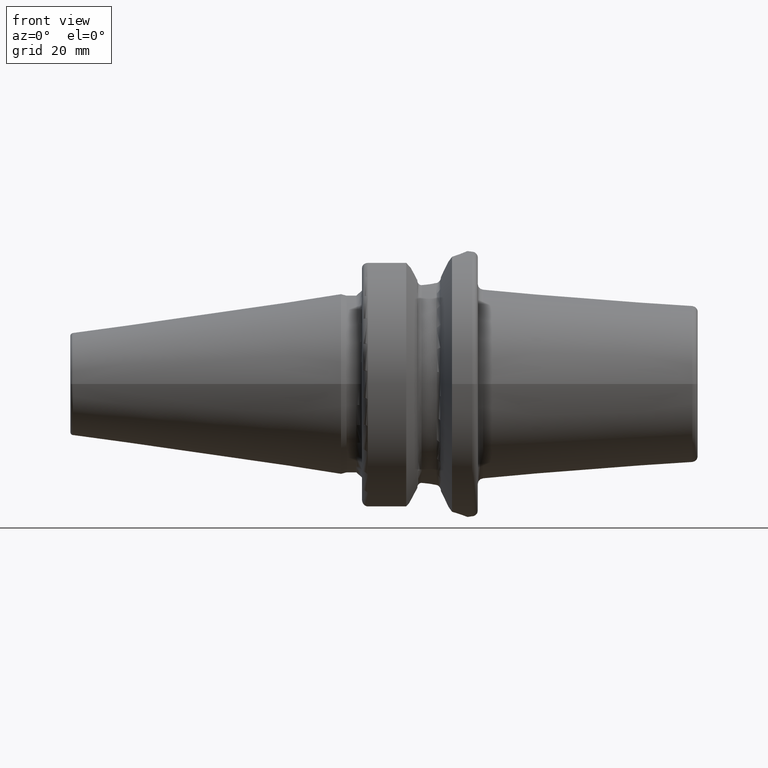
[diagram: clean part render]
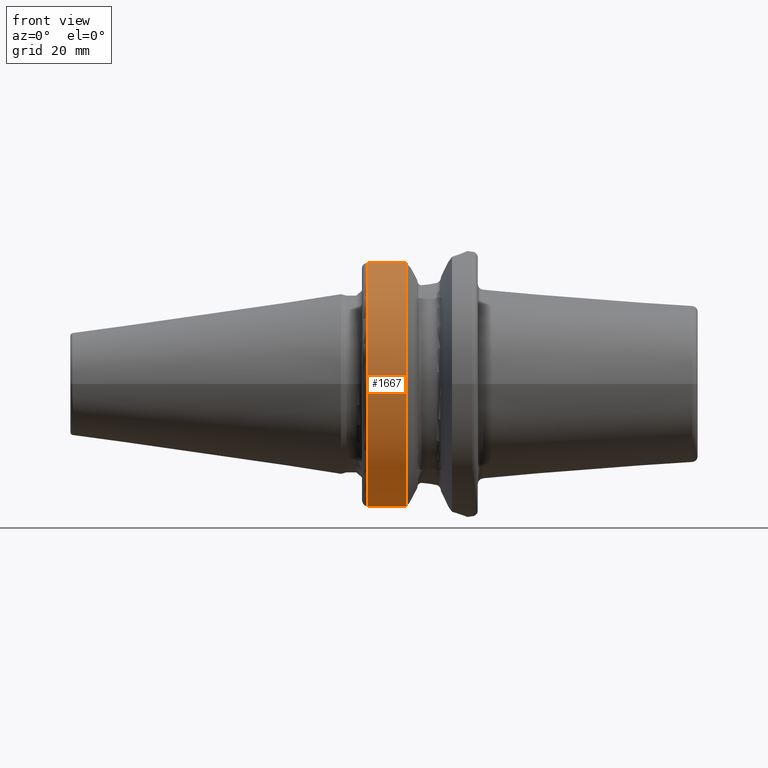
[diagram: same view with one face highlighted and labeled with its STEP entity id]
A machine part, front view. The second image highlights one B-rep face of the part: STEP entity #1667.
In plain terms, the highlighted cylindrical surface (partial cylindrical patch) has radius 22.99 mm, axis along (1, 0, 0).
Its self-contained STEP definition (entity closure, byte-faithful):
#190=CARTESIAN_POINT('',(9.650924158743E0,0.E0,0.E0));
#191=DIRECTION('',(1.E0,0.E0,0.E0));
#192=DIRECTION('',(0.E0,-4.135970895862E-1,9.104600197075E-1));
#193=AXIS2_PLACEMENT_3D('',#190,#191,#192);
#195=DIRECTION('',(9.999999999953E-1,1.691137854943E-6,-2.559578267209E-6));
#196=VECTOR('',#195,6.650924186073E0);
#197=CARTESIAN_POINT('',(2.999999972701E0,-9.014923952472E0,-2.114877606078E1));
#198=LINE('',#197,#196);
#199=CARTESIAN_POINT('',(3.E0,0.E0,0.E0));
#200=DIRECTION('',(-1.E0,0.E0,0.E0));
#201=DIRECTION('',(0.E0,-3.921232146517E-1,-9.199127048428E-1));
#202=AXIS2_PLACEMENT_3D('',#199,#200,#201);
#204=DIRECTION('',(-9.999999999877E-1,2.689360368840E-6,4.174830096868E-6));
#205=VECTOR('',#204,6.650924175867E0);
#206=CARTESIAN_POINT('',(9.650924158743E0,-9.508597089586E0,2.093147585308E1));
#207=LINE('',#206,#205);
#612=CARTESIAN_POINT('',(2.999999972701E0,-9.014923952472E0,-2.114877606078E1));
#1304=CARTESIAN_POINT('',(9.650924158743E0,-9.508597089586E0,2.093147585308E1));
#1305=CARTESIAN_POINT('',(9.650924158743E0,-9.014912704843E0,
-2.114879308434E1));
#1306=VERTEX_POINT('',#1304);
#1307=VERTEX_POINT('',#1305);
#1320=CARTESIAN_POINT('',(3.E0,-9.508621994147E0,2.093146453960E1));
#1321=VERTEX_POINT('',#1320);
#1342=VERTEX_POINT('',#612);
#1653=CARTESIAN_POINT('',(-5.192E1,0.E0,0.E0));
#1654=DIRECTION('',(1.E0,0.E0,0.E0));
#1655=DIRECTION('',(0.E0,-1.E0,0.E0));
#1656=AXIS2_PLACEMENT_3D('',#1653,#1654,#1655);
#1657=CYLINDRICAL_SURFACE('',#1656,2.299E1);
#1658=ORIENTED_EDGE('',*,*,#1642,.T.);
#1660=ORIENTED_EDGE('',*,*,#1659,.F.);
#1662=ORIENTED_EDGE('',*,*,#1661,.T.);
#1664=ORIENTED_EDGE('',*,*,#1663,.F.);
#1665=EDGE_LOOP('',(#1658,#1660,#1662,#1664));
#1666=FACE_OUTER_BOUND('',#1665,.F.);
#1667=ADVANCED_FACE('',(#1666),#1657,.T.);
#194=CIRCLE('',#193,2.299E1);
#203=CIRCLE('',#202,2.299E1);
#1642=EDGE_CURVE('',#1306,#1307,#194,.T.);
#1659=EDGE_CURVE('',#1342,#1307,#198,.T.);
#1661=EDGE_CURVE('',#1342,#1321,#203,.T.);
#1663=EDGE_CURVE('',#1306,#1321,#207,.T.);